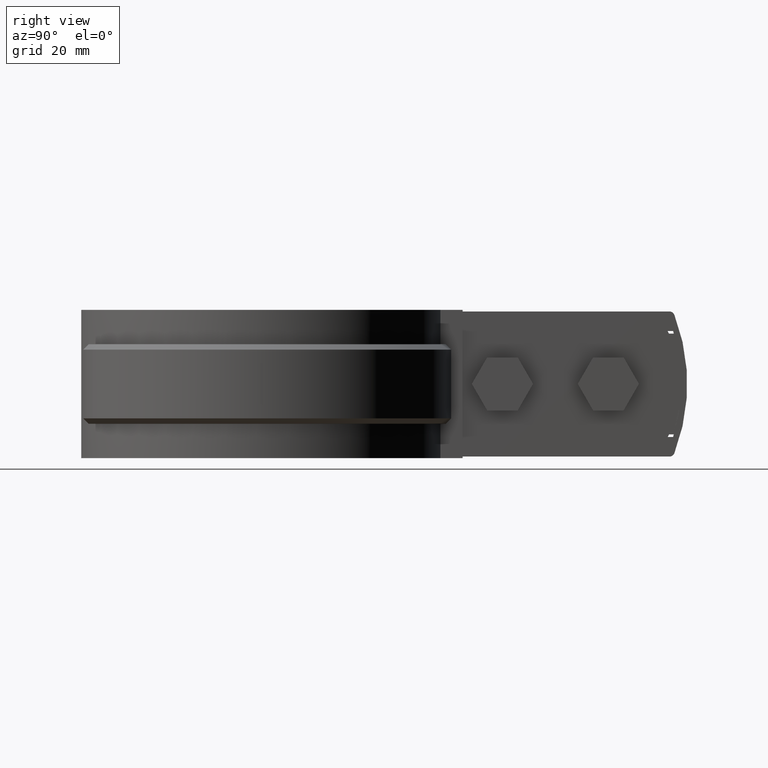
[diagram: clean part render]
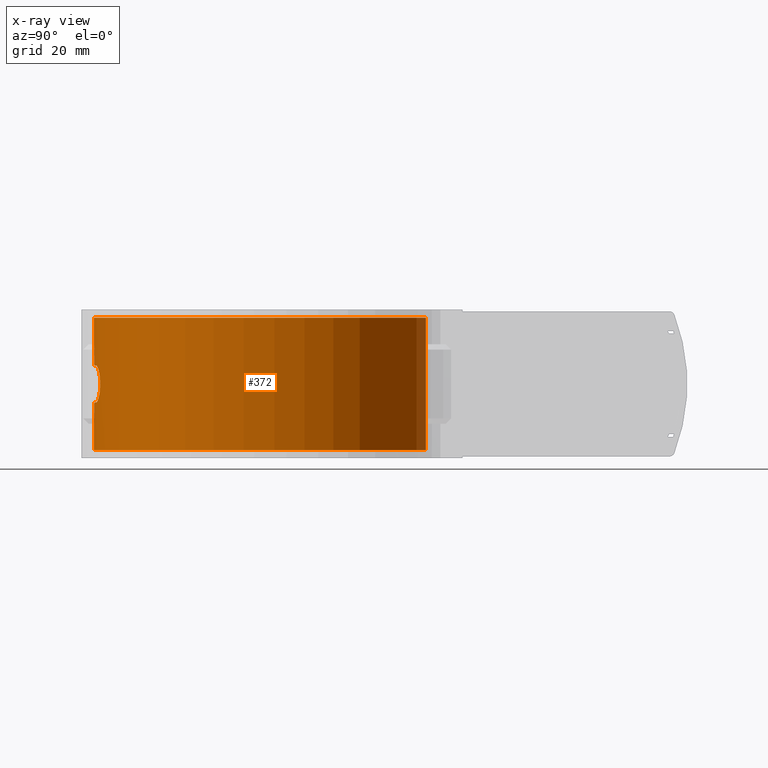
[diagram: x-ray — body ghosted, one internal face saturated and labeled with its STEP entity id]
A machine part, right view, then the same camera in x-ray: the body is ghosted and one INTERNAL B-rep face — a face not visible from any outside direction — is saturated and labeled: STEP entity #372.
In plain terms, the highlighted cylindrical surface (partial cylindrical patch) has radius 31.7 mm, axis along (0, 0, 1).
Its self-contained STEP definition (entity closure, byte-faithful):
#372 = ADVANCED_FACE( '', ( #739, #740 ), #741, .F. );
#739 = FACE_OUTER_BOUND( '', #1505, .T. );
#740 = FACE_BOUND( '', #1506, .T. );
#741 = CYLINDRICAL_SURFACE( '', #1507, 31.7000000000000 );
#1505 = EDGE_LOOP( '', ( #3141, #3142, #3143, #3144 ) );
#1506 = EDGE_LOOP( '', ( #3145, #3146, #3147, #3148, #3149, #3150, #3151, #3152, #3153, #3154, #3155, #3156, #3157, #3158, #3159, #3160 ) );
#1507 = AXIS2_PLACEMENT_3D( '', #3161, #3162, #3163 );
#3141 = ORIENTED_EDGE( '', *, *, #6868, .T. );
#3142 = ORIENTED_EDGE( '', *, *, #6869, .F. );
#3143 = ORIENTED_EDGE( '', *, *, #6870, .F. );
#3144 = ORIENTED_EDGE( '', *, *, #6816, .T. );
#3145 = ORIENTED_EDGE( '', *, *, #6871, .T. );
#3146 = ORIENTED_EDGE( '', *, *, #6872, .T. );
#3147 = ORIENTED_EDGE( '', *, *, #6873, .T. );
#3148 = ORIENTED_EDGE( '', *, *, #6874, .T. );
#3149 = ORIENTED_EDGE( '', *, *, #6875, .T. );
#3150 = ORIENTED_EDGE( '', *, *, #6876, .T. );
#3151 = ORIENTED_EDGE( '', *, *, #6866, .T. );
#3152 = ORIENTED_EDGE( '', *, *, #6863, .T. );
#3153 = ORIENTED_EDGE( '', *, *, #6865, .T. );
#3154 = ORIENTED_EDGE( '', *, *, #6826, .T. );
#3155 = ORIENTED_EDGE( '', *, *, #6829, .T. );
#3156 = ORIENTED_EDGE( '', *, *, #6877, .T. );
#3157 = ORIENTED_EDGE( '', *, *, #6878, .T. );
#3158 = ORIENTED_EDGE( '', *, *, #6879, .T. );
#3159 = ORIENTED_EDGE( '', *, *, #6880, .T. );
#3160 = ORIENTED_EDGE( '', *, *, #6881, .T. );
#3161 = CARTESIAN_POINT( '', ( 0.000000000000000, 0.000000000000000, 0.000000000000000 ) );
#3162 = DIRECTION( '', ( 0.000000000000000, 0.000000000000000, 1.00000000000000 ) );
#3163 = DIRECTION( '', ( 1.00000000000000, -6.12303176911189E-017, 0.000000000000000 ) );
#6816 = EDGE_CURVE( '', #7768, #7766, #7769, .T. );
#6826 = EDGE_CURVE( '', #7778, #7786, #7788, .T. );
#6829 = EDGE_CURVE( '', #7786, #7791, #7793, .T. );
#6863 = EDGE_CURVE( '', #7857, #7855, #7858, .T. );
#6865 = EDGE_CURVE( '', #7855, #7778, #7860, .T. );
#6866 = EDGE_CURVE( '', #7861, #7857, #7862, .T. );
#6868 = EDGE_CURVE( '', #7766, #7864, #7865, .T. );
#6869 = EDGE_CURVE( '', #7866, #7864, #7867, .T. );
#6870 = EDGE_CURVE( '', #7768, #7866, #7868, .T. );
#6871 = EDGE_CURVE( '', #7869, #7870, #7871, .T. );
#6872 = EDGE_CURVE( '', #7870, #7872, #7873, .T. );
#6873 = EDGE_CURVE( '', #7872, #7874, #7875, .T. );
#6874 = EDGE_CURVE( '', #7874, #7876, #7877, .T. );
#6875 = EDGE_CURVE( '', #7876, #7878, #7879, .T. );
#6876 = EDGE_CURVE( '', #7878, #7861, #7880, .T. );
#6877 = EDGE_CURVE( '', #7791, #7881, #7882, .T. );
#6878 = EDGE_CURVE( '', #7881, #7883, #7884, .T. );
#6879 = EDGE_CURVE( '', #7883, #7885, #7886, .T. );
#6880 = EDGE_CURVE( '', #7885, #7887, #7888, .T. );
#6881 = EDGE_CURVE( '', #7887, #7869, #7889, .T. );
#7766 = VERTEX_POINT( '', #9331 );
#7768 = VERTEX_POINT( '', #9333 );
#7769 = CIRCLE( '', #9334, 31.7000000000000 );
#7778 = VERTEX_POINT( '', #9354 );
#7786 = VERTEX_POINT( '', #9398 );
#7788 = B_SPLINE_CURVE_WITH_KNOTS( '', 3, ( #9401, #9402, #9403, #9404, #9405, #9406, #9407, #9408, #9409, #9410, #9411, #9412, #9413, #9414, #9415, #9416, #9417, #9418, #9419, #9420, #9421, #9422, #9423, #9424, #9425, #9426, #9427, #9428, #9429, #9430, #9431, #9432, #9433, #9434 ), .UNSPECIFIED., .F., .F., ( 4, 2, 2, 2, 2, 2, 2, 2, 2, 2, 2, 2, 2, 2, 2, 2, 4 ), ( 3.46944695195361E-018, 0.000691178977991203, 0.00138235795598240, 0.00207353693397360, 0.00276471591196480, 0.00345589488995600, 0.00414707386794720, 0.00483825284593840, 0.00552943182392960, 0.00622061080192080, 0.00691178977991200, 0.00760296875790320, 0.00829414773589440, 0.00898532671388560, 0.00967650569187680, 0.0103676846698680, 0.0110588636478592 ), .UNSPECIFIED. );
#7791 = VERTEX_POINT( '', #9437 );
#7793 = CIRCLE( '', #9440, 31.7000000000000 );
#7855 = VERTEX_POINT( '', #9798 );
#7857 = VERTEX_POINT( '', #9801 );
#7858 = B_SPLINE_CURVE_WITH_KNOTS( '', 3, ( #9802, #9803, #9804, #9805, #9806, #9807 ), .UNSPECIFIED., .F., .F., ( 4, 2, 4 ), ( 4.33680868994202E-019, 0.000335977299192527, 0.000671954598385053 ), .UNSPECIFIED. );
#7860 = CIRCLE( '', #9810, 31.7000000000000 );
#7861 = VERTEX_POINT( '', #9811 );
#7862 = ELLIPSE( '', #9812, 144.411258446055, 31.7000000000000 );
#7864 = VERTEX_POINT( '', #9815 );
#7865 = LINE( '', #9816, #9817 );
#7866 = VERTEX_POINT( '', #9818 );
#7867 = CIRCLE( '', #9819, 31.7000000000000 );
#7868 = LINE( '', #9820, #9821 );
#7869 = VERTEX_POINT( '', #9822 );
#7870 = VERTEX_POINT( '', #9823 );
#7871 = CIRCLE( '', #9824, 31.7000000000000 );
#7872 = VERTEX_POINT( '', #9825 );
#7873 = B_SPLINE_CURVE_WITH_KNOTS( '', 3, ( #9826, #9827, #9828, #9829, #9830, #9831, #9832, #9833, #9834, #9835, #9836, #9837, #9838, #9839, #9840, #9841, #9842, #9843, #9844, #9845, #9846, #9847, #9848, #9849, #9850, #9851, #9852, #9853, #9854, #9855, #9856, #9857, #9858, #9859 ), .UNSPECIFIED., .F., .F., ( 4, 2, 2, 2, 2, 2, 2, 2, 2, 2, 2, 2, 2, 2, 2, 2, 4 ), ( 0.000000000000000, 0.000691178977991196, 0.00138235795598239, 0.00207353693397359, 0.00276471591196478, 0.00345589488995598, 0.00414707386794718, 0.00483825284593837, 0.00552943182392957, 0.00622061080192076, 0.00691178977991196, 0.00760296875790316, 0.00829414773589435, 0.00898532671388555, 0.00967650569187675, 0.0103676846698679, 0.0110588636478591 ), .UNSPECIFIED. );
#7874 = VERTEX_POINT( '', #9860 );
#7875 = CIRCLE( '', #9861, 31.7000000000000 );
#7876 = VERTEX_POINT( '', #9862 );
#7877 = B_SPLINE_CURVE_WITH_KNOTS( '', 3, ( #9863, #9864, #9865, #9866, #9867, #9868 ), .UNSPECIFIED., .F., .F., ( 4, 2, 4 ), ( 8.20849171219253E-018, 0.000335973507445462, 0.000671947014890916 ), .UNSPECIFIED. );
#7878 = VERTEX_POINT( '', #9869 );
#7879 = ELLIPSE( '', #9870, 144.411184778558, 31.7000000000000 );
#7880 = B_SPLINE_CURVE_WITH_KNOTS( '', 3, ( #9871, #9872, #9873, #9874, #9875, #9876, #9877, #9878, #9879, #9880 ), .UNSPECIFIED., .F., .F., ( 4, 2, 2, 2, 4 ), ( 0.000000000000000, 0.000671593304811094, 0.00134318660962219, 0.00201477991443328, 0.00268637321924438 ), .UNSPECIFIED. );
#7881 = VERTEX_POINT( '', #9881 );
#7882 = B_SPLINE_CURVE_WITH_KNOTS( '', 3, ( #9882, #9883, #9884, #9885, #9886, #9887 ), .UNSPECIFIED., .F., .F., ( 4, 2, 4 ), ( 2.81892564846231E-018, 0.000335973507445511, 0.000671947014891020 ), .UNSPECIFIED. );
#7883 = VERTEX_POINT( '', #9888 );
#7884 = ELLIPSE( '', #9889, 144.411184778566, 31.7000000000000 );
#7885 = VERTEX_POINT( '', #9890 );
#7886 = B_SPLINE_CURVE_WITH_KNOTS( '', 3, ( #9891, #9892, #9893, #9894, #9895, #9896, #9897, #9898, #9899, #9900 ), .UNSPECIFIED., .F., .F., ( 4, 2, 2, 2, 4 ), ( 0.000000000000000, 0.000671593304811101, 0.00134318660962220, 0.00201477991443330, 0.00268637321924441 ), .UNSPECIFIED. );
#7887 = VERTEX_POINT( '', #9901 );
#7888 = ELLIPSE( '', #9902, 144.411258446086, 31.7000000000000 );
#7889 = B_SPLINE_CURVE_WITH_KNOTS( '', 3, ( #9903, #9904, #9905, #9906, #9907, #9908 ), .UNSPECIFIED., .F., .F., ( 4, 2, 4 ), ( 4.33680868994202E-019, 0.000335977299192572, 0.000671954598385144 ), .UNSPECIFIED. );
#9331 = CARTESIAN_POINT( '', ( 6.85158501440921, 30.9506992294249, 0.000000000000000 ) );
#9333 = CARTESIAN_POINT( '', ( -6.85158501440923, 30.9506992294249, 0.000000000000000 ) );
#9334 = AXIS2_PLACEMENT_3D( '', #13489, #13490, #13491 );
#9354 = CARTESIAN_POINT( '', ( -5.00000000000005, -31.3031947251395, -9.00000000000000 ) );
#9398 = CARTESIAN_POINT( '', ( -5.00000000000005, -31.3031947251395, -16.0000000000000 ) );
#9401 = CARTESIAN_POINT( '', ( -5.00000000000005, -31.3031947251395, -8.99999999999997 ) );
#9402 = CARTESIAN_POINT( '', ( -5.23081910024194, -31.2663264274675, -8.99999999999997 ) );
#9403 = CARTESIAN_POINT( '', ( -5.45738421522894, -31.2275219453692, -9.02260605858766 ) );
#9404 = CARTESIAN_POINT( '', ( -5.90247544172510, -31.1464597182565, -9.11075126005851 ) );
#9405 = CARTESIAN_POINT( '', ( -6.12315325726286, -31.1037506549934, -9.17726839373158 ) );
#9406 = CARTESIAN_POINT( '', ( -6.54487208417177, -31.0177523367145, -9.35112896260548 ) );
#9407 = CARTESIAN_POINT( '', ( -6.74481423243011, -30.9747494185992, -9.45743688617193 ) );
#9408 = CARTESIAN_POINT( '', ( -7.12334046004392, -30.8898954557199, -9.70840685305713 ) );
#9409 = CARTESIAN_POINT( '', ( -7.30311137878189, -30.8477262237138, -9.85472398390486 ) );
#9410 = CARTESIAN_POINT( '', ( -7.62631920825311, -30.7694150792296, -10.1752947195906 ) );
#9411 = CARTESIAN_POINT( '', ( -7.77157588367693, -30.7328851187544, -10.3503269958804 ) );
#9412 = CARTESIAN_POINT( '', ( -8.02867606090618, -30.6667243139423, -10.7308622943044 ) );
#9413 = CARTESIAN_POINT( '', ( -8.13934190056060, -30.6373876935816, -10.9357023006229 ) );
#9414 = CARTESIAN_POINT( '', ( -8.31648141621131, -30.5897784907779, -11.3583144579977 ) );
#9415 = CARTESIAN_POINT( '', ( -8.38451105977702, -30.5711019272253, -11.5782674575315 ) );
#9416 = CARTESIAN_POINT( '', ( -8.47694833014021, -30.5455994500755, -12.0359565719313 ) );
#9417 = CARTESIAN_POINT( '', ( -8.49974920301196, -30.5392249992133, -12.2656706277309 ) );
#9418 = CARTESIAN_POINT( '', ( -8.50024672237698, -30.5390865240824, -12.7267765886949 ) );
#9419 = CARTESIAN_POINT( '', ( -8.47723220471902, -30.5455194596891, -12.9608695359545 ) );
#9420 = CARTESIAN_POINT( '', ( -8.38629254935344, -30.5706120676645, -13.4146405331601 ) );
#9421 = CARTESIAN_POINT( '', ( -8.31906478371763, -30.5890766914277, -13.6344599035755 ) );
#9422 = CARTESIAN_POINT( '', ( -8.14150355722485, -30.6368139912987, -14.0601748976569 ) );
#9423 = CARTESIAN_POINT( '', ( -8.03076765310175, -30.6661722941769, -14.2653935811129 ) );
#9424 = CARTESIAN_POINT( '', ( -7.77563070415972, -30.7318551250453, -14.6443043761202 ) );
#9425 = CARTESIAN_POINT( '', ( -7.62997081570179, -30.7685189506177, -14.8208190710266 ) );
#9426 = CARTESIAN_POINT( '', ( -7.30348785322535, -30.8476462350172, -15.1451637684512 ) );
#9427 = CARTESIAN_POINT( '', ( -7.12722269205172, -30.8889972279325, -15.2886123203798 ) );
#9428 = CARTESIAN_POINT( '', ( -6.74955200051353, -30.9737146761845, -15.5398195427448 ) );
#9429 = CARTESIAN_POINT( '', ( -6.54577848582126, -31.0175583875793, -15.6483990806522 ) );
#9430 = CARTESIAN_POINT( '', ( -6.12482112184702, -31.1034195955639, -15.8221416800201 ) );
#9431 = CARTESIAN_POINT( '', ( -5.90798227914977, -31.1454209708295, -15.8878308190517 ) );
#9432 = CARTESIAN_POINT( '', ( -5.46145874370253, -31.2268149264661, -15.9769074341470 ) );
#9433 = CARTESIAN_POINT( '', ( -5.23082235296654, -31.2663259079160, -16.0000000000000 ) );
#9434 = CARTESIAN_POINT( '', ( -5.00000000000006, -31.3031947251395, -16.0000000000000 ) );
#9437 = CARTESIAN_POINT( '', ( -1.65000000000006, -31.6570292352267, -16.0000000000000 ) );
#9440 = AXIS2_PLACEMENT_3D( '', #13502, #13503, #13504 );
#9798 = CARTESIAN_POINT( '', ( -1.65000000000003, -31.6570292352267, -9.00000000000000 ) );
#9801 = CARTESIAN_POINT( '', ( -1.16219512100914, -31.6786884592892, -8.60975609337373 ) );
#9802 = CARTESIAN_POINT( '', ( -1.16219512100916, -31.6786884592892, -8.60975609337372 ) );
#9803 = CARTESIAN_POINT( '', ( -1.18713209904709, -31.6777735971021, -8.72058711131791 ) );
#9804 = CARTESIAN_POINT( '', ( -1.24908359425599, -31.6755057835041, -8.81961707537800 ) );
#9805 = CARTESIAN_POINT( '', ( -1.42642438731876, -31.6680152509358, -8.96141411409069 ) );
#9806 = CARTESIAN_POINT( '', ( -1.53655201146209, -31.6629422720975, -8.99999999999994 ) );
#9807 = CARTESIAN_POINT( '', ( -1.65000000000003, -31.6570292352267, -8.99999999999994 ) );
#9810 = AXIS2_PLACEMENT_3D( '', #13535, #13536, #13537 );
#9811 = CARTESIAN_POINT( '', ( -0.975610000000026, -31.6849835904629, -7.78048800000004 ) );
#9812 = AXIS2_PLACEMENT_3D( '', #13538, #13539, #13540 );
#9815 = CARTESIAN_POINT( '', ( 6.85158501440921, 30.9506992294249, -25.0000000000000 ) );
#9816 = CARTESIAN_POINT( '', ( 6.85158501440921, 30.9506992294249, 0.000000000000000 ) );
#9817 = VECTOR( '', #13542, 1000.00000000000 );
#9818 = CARTESIAN_POINT( '', ( -6.85158501440923, 30.9506992294249, -25.0000000000000 ) );
#9819 = AXIS2_PLACEMENT_3D( '', #13543, #13544, #13545 );
#9820 = CARTESIAN_POINT( '', ( -6.85158501440923, 30.9506992294249, 0.000000000000000 ) );
#9821 = VECTOR( '', #13546, 1000.00000000000 );
#9822 = CARTESIAN_POINT( '', ( 1.65000000000001, -31.6570292352267, -16.0000000000000 ) );
#9823 = CARTESIAN_POINT( '', ( 4.99999999999994, -31.3031947251395, -16.0000000000000 ) );
#9824 = AXIS2_PLACEMENT_3D( '', #13547, #13548, #13549 );
#9825 = CARTESIAN_POINT( '', ( 5.00000000000000, -31.3031947251395, -9.00000000000000 ) );
#9826 = CARTESIAN_POINT( '', ( 4.99999999999994, -31.3031947251395, -16.0000000000000 ) );
#9827 = CARTESIAN_POINT( '', ( 5.23081910024182, -31.2663264274675, -16.0000000000000 ) );
#9828 = CARTESIAN_POINT( '', ( 5.45738421522883, -31.2275219453692, -15.9773939414123 ) );
#9829 = CARTESIAN_POINT( '', ( 5.90247544172498, -31.1464597182565, -15.8892487399414 ) );
#9830 = CARTESIAN_POINT( '', ( 6.12315325726274, -31.1037506549934, -15.8227316062684 ) );
#9831 = CARTESIAN_POINT( '', ( 6.54487208417165, -31.0177523367145, -15.6488710373945 ) );
#9832 = CARTESIAN_POINT( '', ( 6.74481423242999, -30.9747494185992, -15.5425631138280 ) );
#9833 = CARTESIAN_POINT( '', ( 7.12334046004379, -30.8898954557199, -15.2915931469428 ) );
#9834 = CARTESIAN_POINT( '', ( 7.30311137878176, -30.8477262237139, -15.1452760160951 ) );
#9835 = CARTESIAN_POINT( '', ( 7.62631920825299, -30.7694150792297, -14.8247052804094 ) );
#9836 = CARTESIAN_POINT( '', ( 7.77157588367680, -30.7328851187544, -14.6496730041195 ) );
#9837 = CARTESIAN_POINT( '', ( 8.02867606090605, -30.6667243139423, -14.2691377056955 ) );
#9838 = CARTESIAN_POINT( '', ( 8.13934190056048, -30.6373876935817, -14.0642976993771 ) );
#9839 = CARTESIAN_POINT( '', ( 8.31648141621119, -30.5897784907780, -13.6416855420022 ) );
#9840 = CARTESIAN_POINT( '', ( 8.38451105977691, -30.5711019272253, -13.4217325424685 ) );
#9841 = CARTESIAN_POINT( '', ( 8.47694833014010, -30.5455994500756, -12.9640434280686 ) );
#9842 = CARTESIAN_POINT( '', ( 8.49974920301185, -30.5392249992133, -12.7343293722691 ) );
#9843 = CARTESIAN_POINT( '', ( 8.50024672237687, -30.5390865240825, -12.2732234113051 ) );
#9844 = CARTESIAN_POINT( '', ( 8.47723220471892, -30.5455194596892, -12.0391304640454 ) );
#9845 = CARTESIAN_POINT( '', ( 8.38629254935335, -30.5706120676645, -11.5853594668399 ) );
#9846 = CARTESIAN_POINT( '', ( 8.31906478371753, -30.5890766914278, -11.3655400964245 ) );
#9847 = CARTESIAN_POINT( '', ( 8.14150355722475, -30.6368139912987, -10.9398251023431 ) );
#9848 = CARTESIAN_POINT( '', ( 8.03076765310166, -30.6661722941769, -10.7346064188871 ) );
#9849 = CARTESIAN_POINT( '', ( 7.77563070415963, -30.7318551250454, -10.3556956238798 ) );
#9850 = CARTESIAN_POINT( '', ( 7.62997081570171, -30.7685189506177, -10.1791809289734 ) );
#9851 = CARTESIAN_POINT( '', ( 7.30348785322527, -30.8476462350172, -9.85483623154874 ) );
#9852 = CARTESIAN_POINT( '', ( 7.12722269205165, -30.8889972279326, -9.71138767962015 ) );
#9853 = CARTESIAN_POINT( '', ( 6.74955200051346, -30.9737146761845, -9.46018045725521 ) );
#9854 = CARTESIAN_POINT( '', ( 6.54577848582120, -31.0175583875793, -9.35160091934772 ) );
#9855 = CARTESIAN_POINT( '', ( 6.12482112184695, -31.1034195955639, -9.17785831997989 ) );
#9856 = CARTESIAN_POINT( '', ( 5.90798227914971, -31.1454209708295, -9.11216918094827 ) );
#9857 = CARTESIAN_POINT( '', ( 5.46145874370247, -31.2268149264661, -9.02309256585293 ) );
#9858 = CARTESIAN_POINT( '', ( 5.23082235296648, -31.2663259079160, -8.99999999999997 ) );
#9859 = CARTESIAN_POINT( '', ( 5.00000000000000, -31.3031947251395, -8.99999999999997 ) );
#9860 = CARTESIAN_POINT( '', ( 1.64999999999995, -31.6570292352267, -9.00000000000000 ) );
#9861 = AXIS2_PLACEMENT_3D( '', #13550, #13551, #13552 );
#9862 = CARTESIAN_POINT( '', ( 1.16219499999998, -31.6786884637286, -8.60975599999999 ) );
#9863 = CARTESIAN_POINT( '', ( 1.64999999999995, -31.6570292352267, -8.99999999999995 ) );
#9864 = CARTESIAN_POINT( '', ( 1.53655198221246, -31.6629422736220, -9.00000000048687 ) );
#9865 = CARTESIAN_POINT( '', ( 1.42642396540933, -31.6680152639956, -8.96141315168630 ) );
#9866 = CARTESIAN_POINT( '', ( 1.24908741115346, -31.6755056270464, -8.81962082432980 ) );
#9867 = CARTESIAN_POINT( '', ( 1.18713198536212, -31.6777736013682, -8.72058704827509 ) );
#9868 = CARTESIAN_POINT( '', ( 1.16219499999999, -31.6786884637286, -8.60975599999999 ) );
#9869 = CARTESIAN_POINT( '', ( 0.975609757981812, -31.6849835979148, -7.78048781325256 ) );
#9870 = AXIS2_PLACEMENT_3D( '', #13553, #13554, #13555 );
#9871 = CARTESIAN_POINT( '', ( 0.975609757981814, -31.6849835979148, -7.78048781325255 ) );
#9872 = CARTESIAN_POINT( '', ( 0.925762090024737, -31.6865184534126, -7.55894271246154 ) );
#9873 = CARTESIAN_POINT( '', ( 0.802004224886772, -31.6903492755237, -7.36098149762313 ) );
#9874 = CARTESIAN_POINT( '', ( 0.447401526348110, -31.6973386872722, -7.07729349203977 ) );
#9875 = CARTESIAN_POINT( '', ( 0.227087794269848, -31.7000000051551, -6.99999985585794 ) );
#9876 = CARTESIAN_POINT( '', ( -0.227089233509893, -31.6999999948449, -7.00000013727507 ) );
#9877 = CARTESIAN_POINT( '', ( -0.447421156045874, -31.6973383527115, -7.07730562708405 ) );
#9878 = CARTESIAN_POINT( '', ( -0.802003305823679, -31.6903492412848, -7.36098401156451 ) );
#9879 = CARTESIAN_POINT( '', ( -0.925762373480284, -31.6865184450658, -7.55894288535638 ) );
#9880 = CARTESIAN_POINT( '', ( -0.975610000000026, -31.6849835904628, -7.78048800000004 ) );
#9881 = CARTESIAN_POINT( '', ( -1.16219500000000, -31.6786884637287, -16.3902440000000 ) );
#9882 = CARTESIAN_POINT( '', ( -1.65000000000006, -31.6570292352267, -16.0000000000000 ) );
#9883 = CARTESIAN_POINT( '', ( -1.53655198221256, -31.6629422736220, -15.9999999995130 ) );
#9884 = CARTESIAN_POINT( '', ( -1.42642396540941, -31.6680152639956, -16.0385868483136 ) );
#9885 = CARTESIAN_POINT( '', ( -1.24908741115350, -31.6755056270464, -16.1803791756701 ) );
#9886 = CARTESIAN_POINT( '', ( -1.18713198536215, -31.6777736013682, -16.2794129517248 ) );
#9887 = CARTESIAN_POINT( '', ( -1.16219500000000, -31.6786884637286, -16.3902440000000 ) );
#9888 = CARTESIAN_POINT( '', ( -0.975609757981852, -31.6849835979148, -17.2195121867475 ) );
#9889 = AXIS2_PLACEMENT_3D( '', #13556, #13557, #13558 );
#9890 = CARTESIAN_POINT( '', ( 0.975610000000013, -31.6849835904628, -17.2195120000000 ) );
#9891 = CARTESIAN_POINT( '', ( -0.975609757981852, -31.6849835979148, -17.2195121867475 ) );
#9892 = CARTESIAN_POINT( '', ( -0.925762090024772, -31.6865184534126, -17.4410572875385 ) );
#9893 = CARTESIAN_POINT( '', ( -0.802004224886805, -31.6903492755237, -17.6390185023769 ) );
#9894 = CARTESIAN_POINT( '', ( -0.447401526348137, -31.6973386872722, -17.9227065079602 ) );
#9895 = CARTESIAN_POINT( '', ( -0.227087794269872, -31.7000000051551, -18.0000001441421 ) );
#9896 = CARTESIAN_POINT( '', ( 0.227089233509875, -31.6999999948449, -17.9999998627249 ) );
#9897 = CARTESIAN_POINT( '', ( 0.447421156045856, -31.6973383527115, -17.9226943729160 ) );
#9898 = CARTESIAN_POINT( '', ( 0.802003305823666, -31.6903492412848, -17.6390159884355 ) );
#9899 = CARTESIAN_POINT( '', ( 0.925762373480271, -31.6865184450658, -17.4410571146436 ) );
#9900 = CARTESIAN_POINT( '', ( 0.975610000000014, -31.6849835904628, -17.2195120000000 ) );
#9901 = CARTESIAN_POINT( '', ( 1.16219512100908, -31.6786884592892, -16.3902439066263 ) );
#9902 = AXIS2_PLACEMENT_3D( '', #13559, #13560, #13561 );
#9903 = CARTESIAN_POINT( '', ( 1.16219512100909, -31.6786884592892, -16.3902439066263 ) );
#9904 = CARTESIAN_POINT( '', ( 1.18713209904701, -31.6777735971021, -16.2794128886821 ) );
#9905 = CARTESIAN_POINT( '', ( 1.24908359425592, -31.6755057835041, -16.1803829246220 ) );
#9906 = CARTESIAN_POINT( '', ( 1.42642438731870, -31.6680152509358, -16.0385858859092 ) );
#9907 = CARTESIAN_POINT( '', ( 1.53655201146205, -31.6629422720975, -16.0000000000000 ) );
#9908 = CARTESIAN_POINT( '', ( 1.65000000000001, -31.6570292352267, -16.0000000000000 ) );
#13489 = CARTESIAN_POINT( '', ( 0.000000000000000, 0.000000000000000, 0.000000000000000 ) );
#13490 = DIRECTION( '', ( 0.000000000000000, 0.000000000000000, 1.00000000000000 ) );
#13491 = DIRECTION( '', ( 1.00000000000000, -6.12303176911189E-017, 0.000000000000000 ) );
#13502 = CARTESIAN_POINT( '', ( 0.000000000000000, 0.000000000000000, -16.0000000000000 ) );
#13503 = DIRECTION( '', ( -6.12303176911189E-017, 0.000000000000000, 1.00000000000000 ) );
#13504 = DIRECTION( '', ( 1.00000000000000, 0.000000000000000, 6.12303176911189E-017 ) );
#13535 = CARTESIAN_POINT( '', ( 0.000000000000000, 0.000000000000000, -9.00000000000000 ) );
#13536 = DIRECTION( '', ( 6.12303176911189E-017, 0.000000000000000, -1.00000000000000 ) );
#13537 = DIRECTION( '', ( -1.00000000000000, 0.000000000000000, -6.12303176911189E-017 ) );
#13538 = CARTESIAN_POINT( '', ( 0.000000000000000, 0.000000000000000, -3.44443890776446 ) );
#13539 = DIRECTION( '', ( 0.975609806487711, 0.000000000000000, -0.219511971165610 ) );
#13540 = DIRECTION( '', ( -0.219511971165610, 0.000000000000000, -0.975609806487711 ) );
#13542 = DIRECTION( '', ( 0.000000000000000, 0.000000000000000, -1.00000000000000 ) );
#13543 = CARTESIAN_POINT( '', ( 0.000000000000000, 0.000000000000000, -25.0000000000000 ) );
#13544 = DIRECTION( '', ( 0.000000000000000, 0.000000000000000, 1.00000000000000 ) );
#13545 = DIRECTION( '', ( 1.00000000000000, -6.12303176911189E-017, 0.000000000000000 ) );
#13546 = DIRECTION( '', ( 0.000000000000000, 0.000000000000000, -1.00000000000000 ) );
#13547 = CARTESIAN_POINT( '', ( 0.000000000000000, 0.000000000000000, -16.0000000000000 ) );
#13548 = DIRECTION( '', ( -6.12303176911189E-017, 0.000000000000000, 1.00000000000000 ) );
#13549 = DIRECTION( '', ( 1.00000000000000, 0.000000000000000, 6.12303176911189E-017 ) );
#13550 = CARTESIAN_POINT( '', ( 0.000000000000000, 0.000000000000000, -9.00000000000000 ) );
#13551 = DIRECTION( '', ( 6.12303176911189E-017, 0.000000000000000, -1.00000000000000 ) );
#13552 = DIRECTION( '', ( -1.00000000000000, 0.000000000000000, -6.12303176911189E-017 ) );
#13553 = CARTESIAN_POINT( '', ( 0.000000000000000, 0.000000000000000, -3.44444212055030 ) );
#13554 = DIRECTION( '', ( -0.975609781292647, 0.000000000000000, -0.219512083143762 ) );
#13555 = DIRECTION( '', ( 0.219512083143762, 0.000000000000000, -0.975609781292647 ) );
#13556 = CARTESIAN_POINT( '', ( 0.000000000000000, 0.000000000000000, -21.5555578794501 ) );
#13557 = DIRECTION( '', ( 0.975609781292650, 0.000000000000000, 0.219512083143750 ) );
#13558 = DIRECTION( '', ( 0.219512083143750, 0.000000000000000, -0.975609781292650 ) );
#13559 = CARTESIAN_POINT( '', ( 0.000000000000000, 0.000000000000000, -21.5555610922364 ) );
#13560 = DIRECTION( '', ( -0.975609806487721, 0.000000000000000, 0.219511971165564 ) );
#13561 = DIRECTION( '', ( -0.219511971165564, 0.000000000000000, -0.975609806487721 ) );